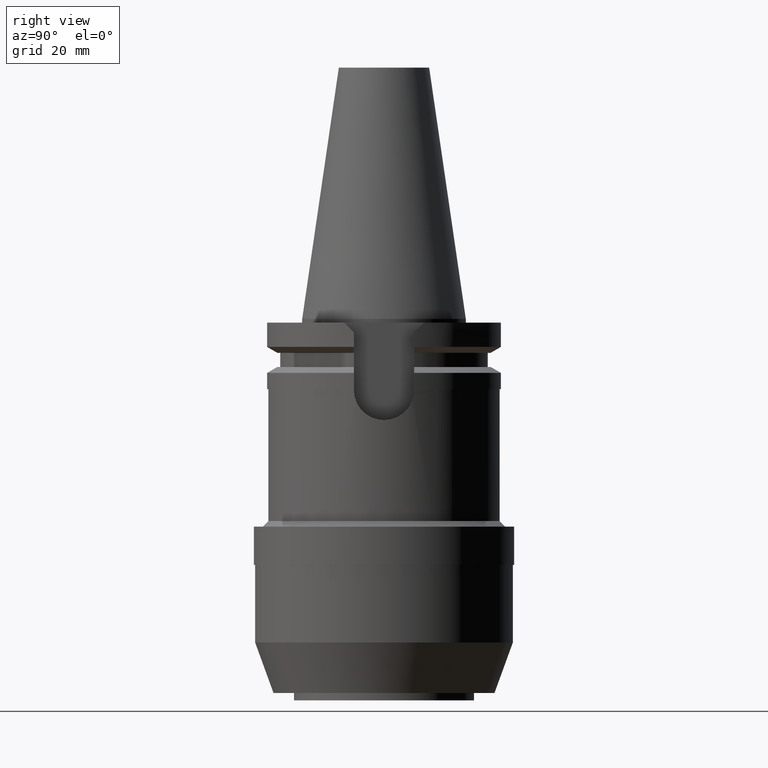
[diagram: clean part render]
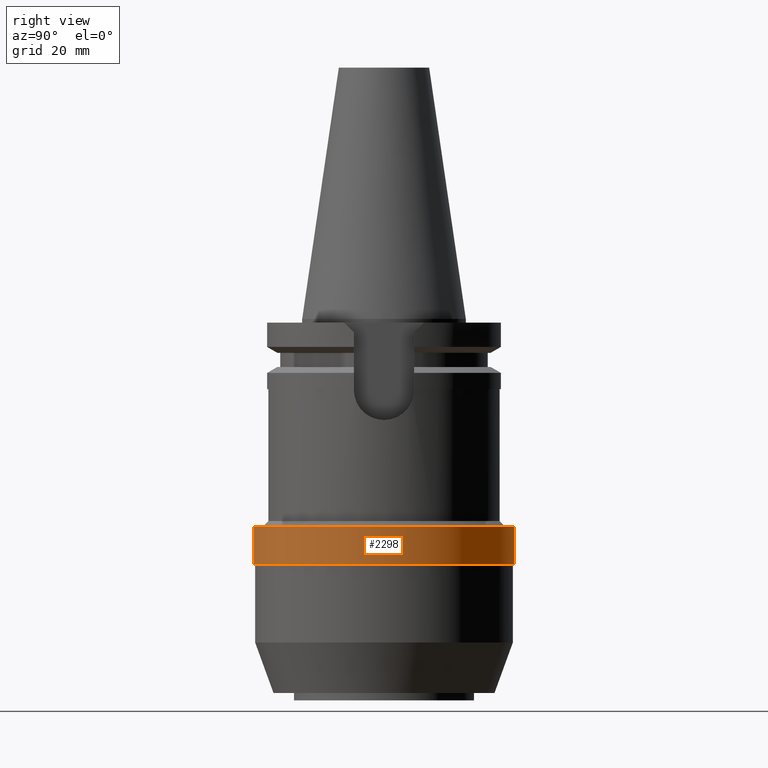
[diagram: same view with one face highlighted and labeled with its STEP entity id]
A machine part, right view. The second image highlights one B-rep face of the part: STEP entity #2298.
In plain terms, the highlighted cylindrical surface (partial cylindrical patch) has radius 35.35 mm, axis along (0, 0, 1).
Its self-contained STEP definition (entity closure, byte-faithful):
#804=CARTESIAN_POINT('',(0.E0,0.E0,-5.64E1));
#805=DIRECTION('',(0.E0,0.E0,-1.E0));
#806=DIRECTION('',(0.E0,1.E0,0.E0));
#807=AXIS2_PLACEMENT_3D('',#804,#805,#806);
#828=DIRECTION('',(0.E0,0.E0,-1.E0));
#829=VECTOR('',#828,1.04E1);
#830=CARTESIAN_POINT('',(0.E0,-3.535E1,-5.64E1));
#831=LINE('',#830,#829);
#835=DIRECTION('',(0.E0,0.E0,-1.E0));
#836=VECTOR('',#835,1.04E1);
#837=CARTESIAN_POINT('',(0.E0,3.535E1,-5.64E1));
#838=LINE('',#837,#836);
#842=CARTESIAN_POINT('',(0.E0,0.E0,-6.68E1));
#843=DIRECTION('',(0.E0,0.E0,1.E0));
#844=DIRECTION('',(0.E0,-1.E0,0.E0));
#845=AXIS2_PLACEMENT_3D('',#842,#843,#844);
#1609=CARTESIAN_POINT('',(0.E0,-3.535E1,-5.64E1));
#1610=CARTESIAN_POINT('',(0.E0,3.535E1,-5.64E1));
#1611=VERTEX_POINT('',#1609);
#1612=VERTEX_POINT('',#1610);
#1613=CARTESIAN_POINT('',(0.E0,3.535E1,-6.68E1));
#1614=VERTEX_POINT('',#1613);
#1615=CARTESIAN_POINT('',(0.E0,-3.535E1,-6.68E1));
#1616=VERTEX_POINT('',#1615);
#2286=CARTESIAN_POINT('',(0.E0,0.E0,-1.121925E2));
#2287=DIRECTION('',(0.E0,0.E0,1.E0));
#2288=DIRECTION('',(0.E0,1.E0,0.E0));
#2289=AXIS2_PLACEMENT_3D('',#2286,#2287,#2288);
#2290=CYLINDRICAL_SURFACE('',#2289,3.535E1);
#2291=ORIENTED_EDGE('',*,*,#2276,.T.);
#2293=ORIENTED_EDGE('',*,*,#2292,.F.);
#2294=ORIENTED_EDGE('',*,*,#2279,.F.);
#2295=ORIENTED_EDGE('',*,*,#2262,.F.);
#2296=EDGE_LOOP('',(#2291,#2293,#2294,#2295));
#2297=FACE_OUTER_BOUND('',#2296,.F.);
#808=CIRCLE('',#807,3.535E1);
#846=CIRCLE('',#845,3.535E1);
#2262=EDGE_CURVE('',#1612,#1611,#808,.T.);
#2276=EDGE_CURVE('',#1612,#1614,#838,.T.);
#2279=EDGE_CURVE('',#1611,#1616,#831,.T.);
#2292=EDGE_CURVE('',#1616,#1614,#846,.T.);
#2298=ADVANCED_FACE('',(#2297),#2290,.T.);